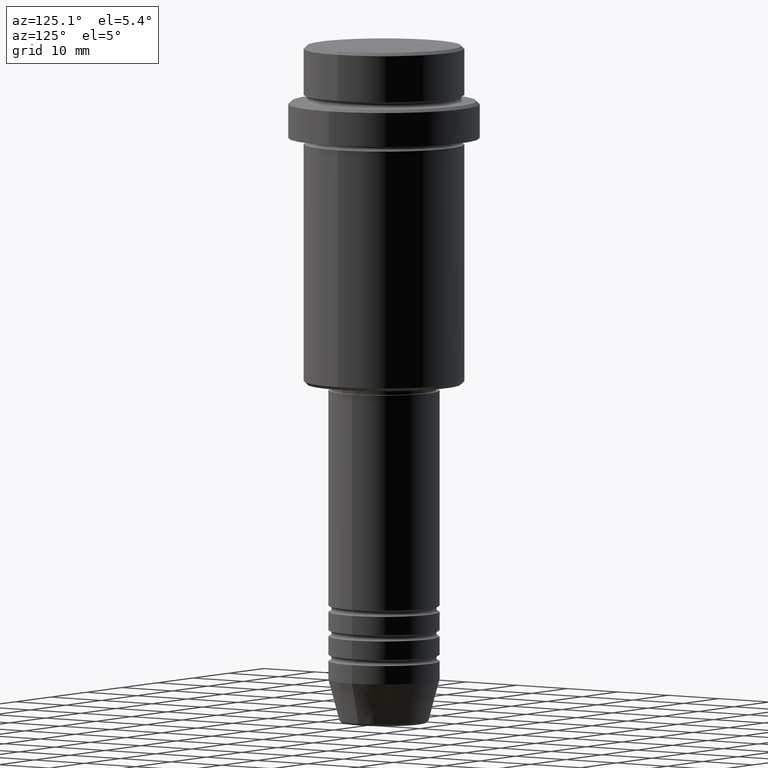
[diagram: clean part render]
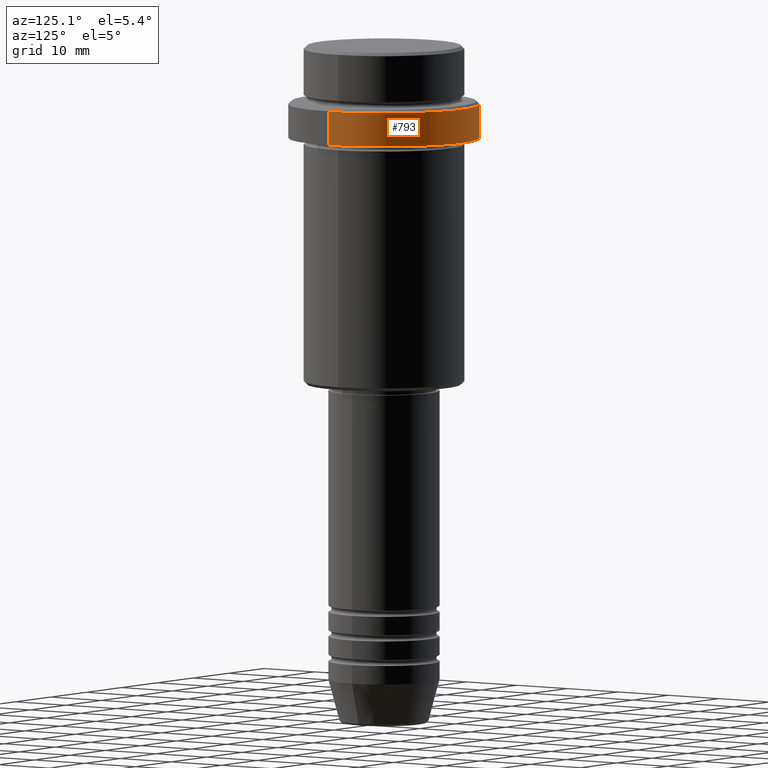
[diagram: same view with one face highlighted and labeled with its STEP entity id]
A machine part, auxiliary view. The second image highlights one B-rep face of the part: STEP entity #793.
In plain terms, the highlighted cylindrical surface (partial cylindrical patch) has radius 15.5 mm, axis along (-0, -0, 1).
Its self-contained STEP definition (entity closure, byte-faithful):
#54 = AXIS2_PLACEMENT_3D ( 'NONE', #822, #588, #936 ) ;
#84 = VERTEX_POINT ( 'NONE', #1014 ) ;
#87 = CARTESIAN_POINT ( 'NONE',  ( 15.50000000000000000, 0.000000000000000000, 0.000000000000000000 ) ) ;
#176 = CARTESIAN_POINT ( 'NONE',  ( 0.000000000000000000, 0.000000000000000000, -15.00000000000000178 ) ) ;
#198 = CARTESIAN_POINT ( 'NONE',  ( -15.50000000000000000, 1.898202538678397557E-15, -15.00000000000000178 ) ) ;
#205 = CARTESIAN_POINT ( 'NONE',  ( -15.50000000000000000, 1.898202538678397557E-15, 0.000000000000000000 ) ) ;
#289 = DIRECTION ( 'NONE',  ( 1.000000000000000000, 0.000000000000000000, 0.000000000000000000 ) ) ;
#301 = LINE ( 'NONE', #87, #1106 ) ;
#302 = CYLINDRICAL_SURFACE ( 'NONE', #1105, 15.50000000000000000 ) ;
#343 = CARTESIAN_POINT ( 'NONE',  ( 15.50000000000000000, 0.000000000000000000, -15.00000000000000178 ) ) ;
#454 = CARTESIAN_POINT ( 'NONE',  ( -15.50000000000000000, 1.898202538678397557E-15, -9.500000000000014211 ) ) ;
#516 = CARTESIAN_POINT ( 'NONE',  ( 0.000000000000000000, 0.000000000000000000, 0.000000000000000000 ) ) ;
#536 = ORIENTED_EDGE ( 'NONE', *, *, #789, .T. ) ;
#539 = LINE ( 'NONE', #205, #1080 ) ;
#588 = DIRECTION ( 'NONE',  ( 0.000000000000000000, 0.000000000000000000, -1.000000000000000000 ) ) ;
#611 = EDGE_CURVE ( 'NONE', #975, #1195, #621, .T. ) ;
#621 = CIRCLE ( 'NONE', #1306, 15.50000000000000000 ) ;
#632 = EDGE_LOOP ( 'NONE', ( #659, #536, #1241, #1335 ) ) ;
#641 = DIRECTION ( 'NONE',  ( -0.000000000000000000, -0.000000000000000000, 1.000000000000000000 ) ) ;
#649 = DIRECTION ( 'NONE',  ( -0.000000000000000000, -0.000000000000000000, 1.000000000000000000 ) ) ;
#659 = ORIENTED_EDGE ( 'NONE', *, *, #611, .T. ) ;
#675 = EDGE_CURVE ( 'NONE', #976, #84, #987, .T. ) ;
#789 = EDGE_CURVE ( 'NONE', #1195, #976, #539, .T. ) ;
#793 = ADVANCED_FACE ( 'NONE', ( #875 ), #302, .T. ) ;
#822 = CARTESIAN_POINT ( 'NONE',  ( 0.000000000000000000, 0.000000000000000000, -9.500000000000014211 ) ) ;
#875 = FACE_OUTER_BOUND ( 'NONE', #632, .T. ) ;
#936 = DIRECTION ( 'NONE',  ( 1.000000000000000000, 0.000000000000000000, 0.000000000000000000 ) ) ;
#975 = VERTEX_POINT ( 'NONE', #343 ) ;
#976 = VERTEX_POINT ( 'NONE', #454 ) ;
#987 = CIRCLE ( 'NONE', #54, 15.50000000000000000 ) ;
#1014 = CARTESIAN_POINT ( 'NONE',  ( 15.50000000000000000, 0.000000000000000000, -9.500000000000014211 ) ) ;
#1064 = DIRECTION ( 'NONE',  ( 1.000000000000000000, 0.000000000000000000, 0.000000000000000000 ) ) ;
#1080 = VECTOR ( 'NONE', #1305, 1000.000000000000000 ) ;
#1105 = AXIS2_PLACEMENT_3D ( 'NONE', #516, #641, #1064 ) ;
#1106 = VECTOR ( 'NONE', #649, 1000.000000000000000 ) ;
#1195 = VERTEX_POINT ( 'NONE', #198 ) ;
#1241 = ORIENTED_EDGE ( 'NONE', *, *, #675, .T. ) ;
#1286 = EDGE_CURVE ( 'NONE', #975, #84, #301, .T. ) ;
#1305 = DIRECTION ( 'NONE',  ( -0.000000000000000000, -0.000000000000000000, 1.000000000000000000 ) ) ;
#1306 = AXIS2_PLACEMENT_3D ( 'NONE', #176, #1358, #289 ) ;
#1335 = ORIENTED_EDGE ( 'NONE', *, *, #1286, .F. ) ;
#1358 = DIRECTION ( 'NONE',  ( -0.000000000000000000, -0.000000000000000000, 1.000000000000000000 ) ) ;